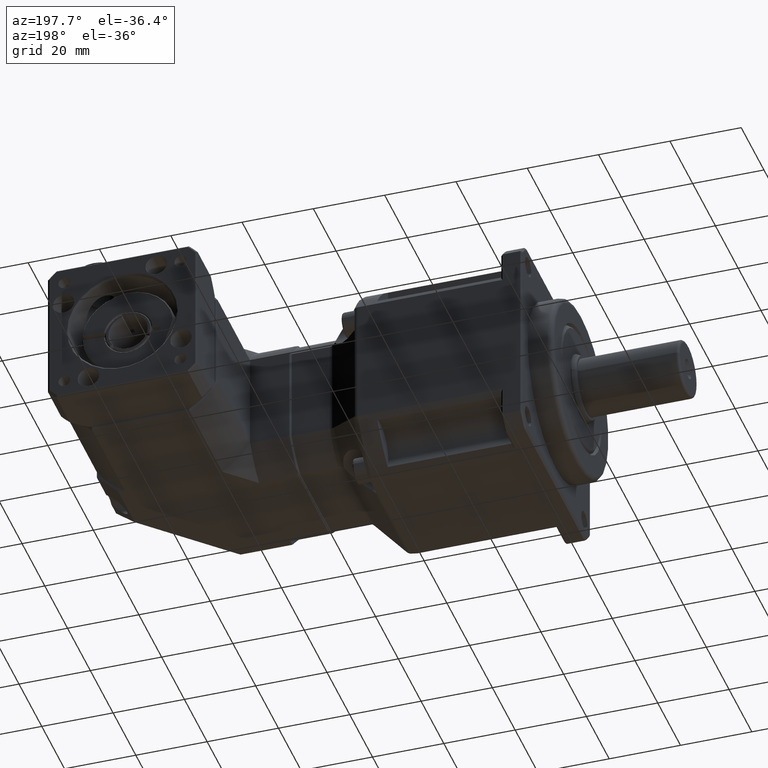
[diagram: clean part render]
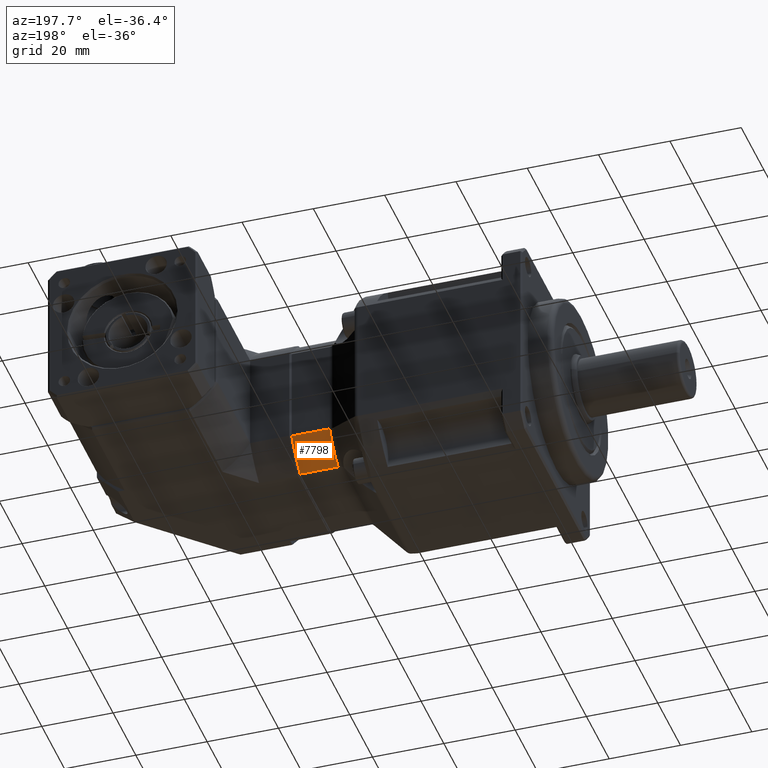
[diagram: same view with one face highlighted and labeled with its STEP entity id]
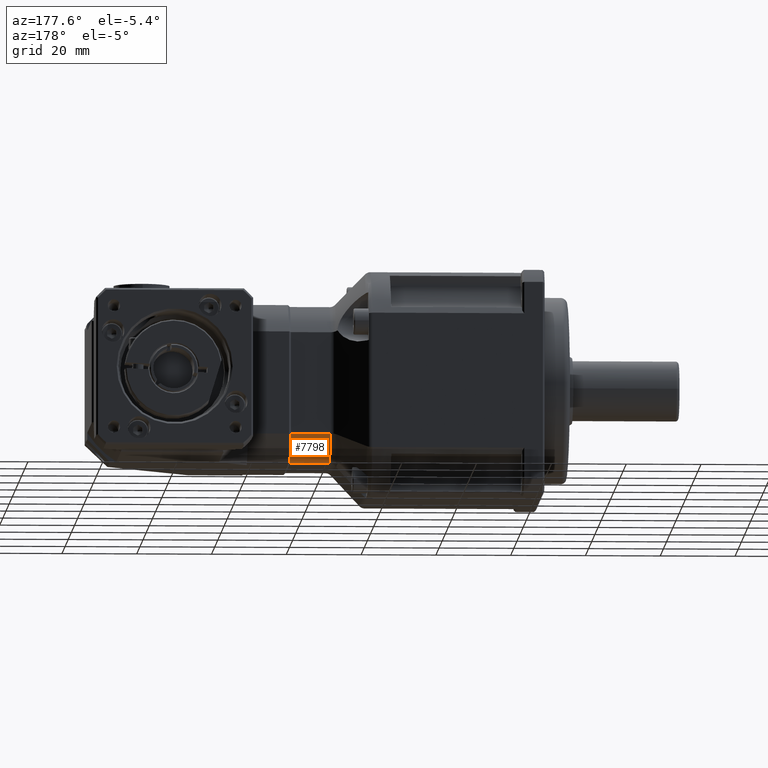
[diagram: same view with one face highlighted and labeled with its STEP entity id]
A machine part, auxiliary view. The second image highlights one B-rep face of the part: STEP entity #7798.
A second angle (auxiliary view) of the same face is appended — the face is thin or edge-on in the first view.
In plain terms, the highlighted cylindrical surface (partial cylindrical patch) has radius 25 mm, axis along (-1, -0, 0).
Its self-contained STEP definition (entity closure, byte-faithful):
#175=B_SPLINE_CURVE_WITH_KNOTS('',3,(#13305,#13306,#13307,#13308),
 .UNSPECIFIED.,.F.,.F.,(4,4),(0.00795565384757262,1.15212985470496),
 .UNSPECIFIED.);
#696=LINE('',#12806,#1091);
#718=LINE('',#13309,#1113);
#1091=VECTOR('',#10283,10.6102454127815);
#1113=VECTOR('',#10363,10.6102454127815);
#2015=FACE_OUTER_BOUND('',#2662,.T.);
#2662=EDGE_LOOP('',(#6381,#6382,#6383,#6384));
#3100=CIRCLE('',#8407,25.);
#3609=VERTEX_POINT('',#12232);
#3618=VERTEX_POINT('',#12267);
#3741=VERTEX_POINT('',#12805);
#3793=VERTEX_POINT('',#13304);
#4440=EDGE_CURVE('',#3618,#3609,#3100,.T.);
#4636=EDGE_CURVE('',#3609,#3741,#696,.T.);
#4715=EDGE_CURVE('',#3741,#3793,#175,.T.);
#4716=EDGE_CURVE('',#3793,#3618,#718,.T.);
#6381=ORIENTED_EDGE('',*,*,#4715,.F.);
#6382=ORIENTED_EDGE('',*,*,#4636,.F.);
#6383=ORIENTED_EDGE('',*,*,#4440,.F.);
#6384=ORIENTED_EDGE('',*,*,#4716,.F.);
#7081=CYLINDRICAL_SURFACE('',#8596,25.);
#7798=ADVANCED_FACE('',(#2015),#7081,.T.);
#8407=AXIS2_PLACEMENT_3D('',#12278,#9873,#9874);
#8596=AXIS2_PLACEMENT_3D('',#13303,#10361,#10362);
#9873=DIRECTION('center_axis',(1.,1.03196878897672E-16,-2.46234633523121E-15));
#9874=DIRECTION('ref_axis',(2.46234633523121E-15,-1.78936726547007E-15,
1.));
#10283=DIRECTION('',(-1.,-1.03196878897672E-16,2.46234633523121E-15));
#10361=DIRECTION('center_axis',(-1.,-1.03196878897672E-16,2.46234633523121E-15));
#10362=DIRECTION('ref_axis',(2.46234633523121E-15,-1.78936726547007E-15,
1.));
#10363=DIRECTION('',(1.,1.03196878897672E-16,-2.46234633523121E-15));
#12232=CARTESIAN_POINT('',(-35.4042359944937,39.2695502360663,-57.7395467789466));
#12267=CARTESIAN_POINT('',(-35.4042359944937,31.8342102023169,-65.174886812696));
#12278=CARTESIAN_POINT('Origin',(-35.4042359944937,18.2695502360663,-44.1748868126961));
#12805=CARTESIAN_POINT('',(-46.0144814072752,39.2695502360663,-57.7395467789465));
#12806=CARTESIAN_POINT('',(-35.4042359944937,39.2695502360663,-57.7395467789466));
#13303=CARTESIAN_POINT('Origin',(-35.4042359944937,18.2695502360663,-44.1748868126961));
#13304=CARTESIAN_POINT('',(-46.0144814072752,31.8342102023169,-65.174886812696));
#13305=CARTESIAN_POINT('Ctrl Pts',(-46.01448140677,39.2695490263707,-57.7395456676544));
#13306=CARTESIAN_POINT('Ctrl Pts',(-46.0131868706171,37.3533430125399,-60.7058177569464));
#13307=CARTESIAN_POINT('Ctrl Pts',(-46.0131868706171,34.8004811803167,-63.2586795891696));
#13308=CARTESIAN_POINT('Ctrl Pts',(-46.01448140677,31.8342090910247,-65.1748856030004));
#13309=CARTESIAN_POINT('',(-35.4042359944937,31.8342102023169,-65.174886812696));